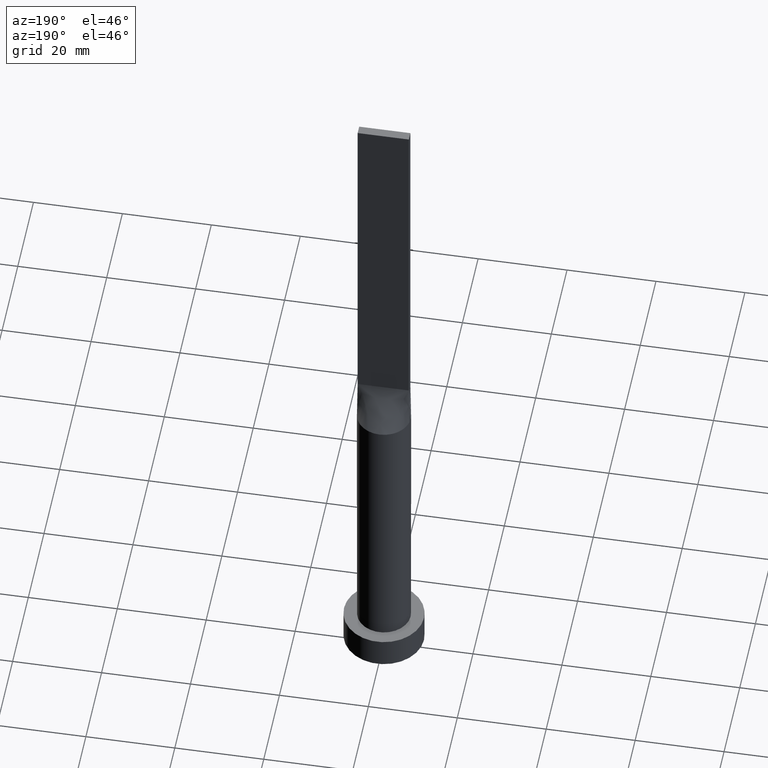
[diagram: clean part render]
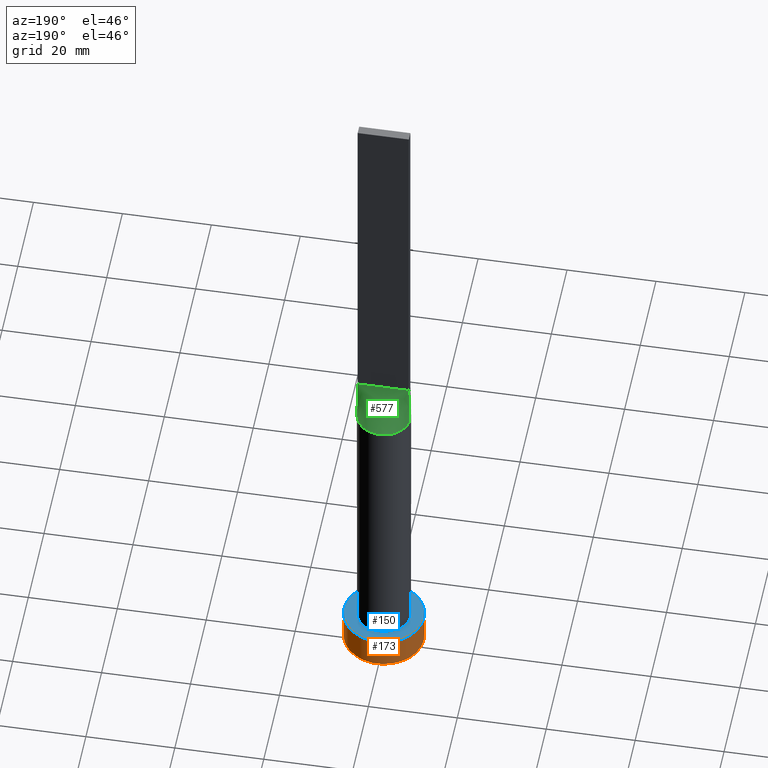
[diagram: same view with three faces highlighted in distinct colors, each labeled with its STEP entity id]
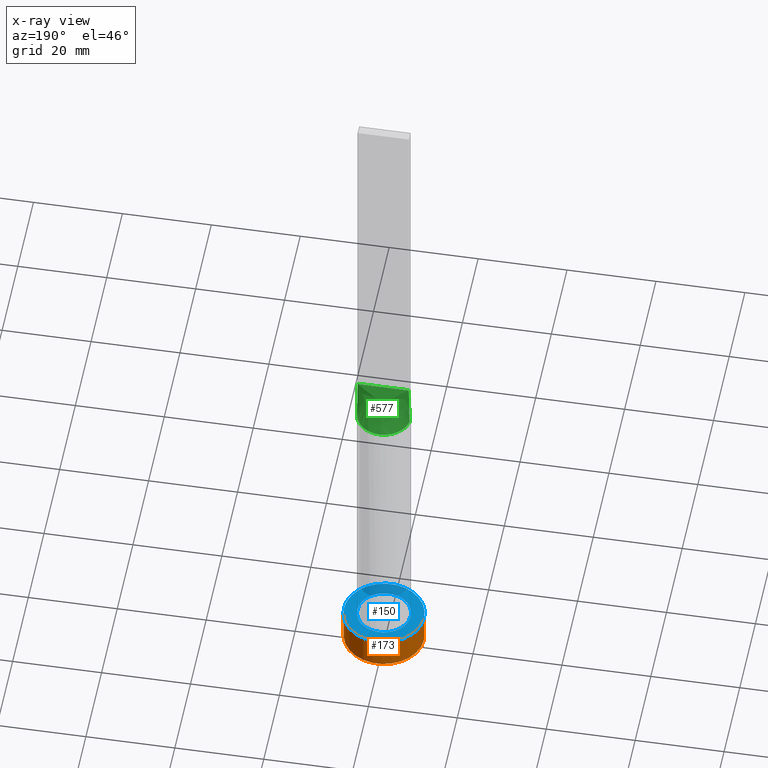
[diagram: x-ray of the same camera — body ghosted, the three highlighted faces saturated]
A machine part, auxiliary view with three faces highlighted in distinct colors.
The next image is the same camera in x-ray (body ghosted, the three faces saturated) — at least one of them is partly hidden behind the body in this view.
Their STEP definitions:

[orange] entity #173 — the highlighted cylindrical surface (partial cylindrical patch) has radius 9 mm, axis along (-0, -0, -1).
#24 = CARTESIAN_POINT ( 'NONE',  ( -9.000000000000000000, 0.000000000000000000, 0.000000000000000000 ) ) ;
#25 = VECTOR ( 'NONE', #178, 1000.000000000000000 ) ;
#48 = LINE ( 'NONE', #52, #281 ) ;
#52 = CARTESIAN_POINT ( 'NONE',  ( -9.000000000000000000, 0.000000000000000000, 7.000000000000000000 ) ) ;
#59 = CARTESIAN_POINT ( 'NONE',  ( 0.000000000000000000, 0.000000000000000000, 0.000000000000000000 ) ) ;
#74 = VERTEX_POINT ( 'NONE', #349 ) ;
#120 = ORIENTED_EDGE ( 'NONE', *, *, #128, .F. ) ;
#128 = EDGE_CURVE ( 'NONE', #303, #74, #235, .T. ) ;
#136 = EDGE_CURVE ( 'NONE', #340, #491, #151, .T. ) ;
#151 = CIRCLE ( 'NONE', #313, 9.000000000000000000 ) ;
#154 = FACE_OUTER_BOUND ( 'NONE', #598, .T. ) ;
#173 = ADVANCED_FACE ( 'NONE', ( #154 ), #509, .T. ) ;
#178 = DIRECTION ( 'NONE',  ( -0.000000000000000000, -0.000000000000000000, -1.000000000000000000 ) ) ;
#235 = CIRCLE ( 'NONE', #375, 9.000000000000000000 ) ;
#256 = DIRECTION ( 'NONE',  ( 0.000000000000000000, 0.000000000000000000, 1.000000000000000000 ) ) ;
#258 = ORIENTED_EDGE ( 'NONE', *, *, #283, .F. ) ;
#265 = ORIENTED_EDGE ( 'NONE', *, *, #136, .T. ) ;
#281 = VECTOR ( 'NONE', #448, 1000.000000000000000 ) ;
#283 = EDGE_CURVE ( 'NONE', #74, #491, #48, .T. ) ;
#296 = CARTESIAN_POINT ( 'NONE',  ( 0.000000000000000000, 0.000000000000000000, 7.000000000000000000 ) ) ;
#303 = VERTEX_POINT ( 'NONE', #402 ) ;
#313 = AXIS2_PLACEMENT_3D ( 'NONE', #59, #597, #459 ) ;
#315 = ORIENTED_EDGE ( 'NONE', *, *, #532, .T. ) ;
#340 = VERTEX_POINT ( 'NONE', #451 ) ;
#349 = CARTESIAN_POINT ( 'NONE',  ( -9.000000000000000000, 0.000000000000000000, 7.000000000000000000 ) ) ;
#375 = AXIS2_PLACEMENT_3D ( 'NONE', #296, #256, #452 ) ;
#402 = CARTESIAN_POINT ( 'NONE',  ( 9.000000000000000000, 1.102182119232617714E-15, 7.000000000000000000 ) ) ;
#405 = AXIS2_PLACEMENT_3D ( 'NONE', #558, #618, #513 ) ;
#420 = LINE ( 'NONE', #611, #25 ) ;
#448 = DIRECTION ( 'NONE',  ( -0.000000000000000000, -0.000000000000000000, -1.000000000000000000 ) ) ;
#451 = CARTESIAN_POINT ( 'NONE',  ( 9.000000000000000000, 1.102182119232617714E-15, 0.000000000000000000 ) ) ;
#452 = DIRECTION ( 'NONE',  ( 1.000000000000000000, 0.000000000000000000, 0.000000000000000000 ) ) ;
#459 = DIRECTION ( 'NONE',  ( 1.000000000000000000, 0.000000000000000000, 0.000000000000000000 ) ) ;
#491 = VERTEX_POINT ( 'NONE', #24 ) ;
#509 = CYLINDRICAL_SURFACE ( 'NONE', #405, 9.000000000000000000 ) ;
#513 = DIRECTION ( 'NONE',  ( -1.000000000000000000, 0.000000000000000000, 0.000000000000000000 ) ) ;
#532 = EDGE_CURVE ( 'NONE', #303, #340, #420, .T. ) ;
#558 = CARTESIAN_POINT ( 'NONE',  ( 0.000000000000000000, 0.000000000000000000, 7.000000000000000000 ) ) ;
#597 = DIRECTION ( 'NONE',  ( 0.000000000000000000, 0.000000000000000000, 1.000000000000000000 ) ) ;
#598 = EDGE_LOOP ( 'NONE', ( #120, #315, #265, #258 ) ) ;
#611 = CARTESIAN_POINT ( 'NONE',  ( 9.000000000000000000, 1.102182119232617714E-15, 7.000000000000000000 ) ) ;
#618 = DIRECTION ( 'NONE',  ( -0.000000000000000000, -0.000000000000000000, -1.000000000000000000 ) ) ;

[blue] entity #150 — the highlighted planar face has unit normal (0, 0, 1).
#14 = CARTESIAN_POINT ( 'NONE',  ( 0.000000000000000000, 0.000000000000000000, 7.000000000000000000 ) ) ;
#15 = CIRCLE ( 'NONE', #161, 6.000000000000000888 ) ;
#22 = DIRECTION ( 'NONE',  ( 0.000000000000000000, 0.000000000000000000, 1.000000000000000000 ) ) ;
#46 = EDGE_CURVE ( 'NONE', #261, #253, #15, .T. ) ;
#55 = EDGE_CURVE ( 'NONE', #253, #261, #134, .T. ) ;
#62 = EDGE_LOOP ( 'NONE', ( #411, #560 ) ) ;
#65 = FACE_BOUND ( 'NONE', #62, .T. ) ;
#74 = VERTEX_POINT ( 'NONE', #349 ) ;
#76 = CARTESIAN_POINT ( 'NONE',  ( 0.000000000000000000, 0.000000000000000000, 7.000000000000000000 ) ) ;
#85 = EDGE_CURVE ( 'NONE', #74, #303, #264, .T. ) ;
#108 = DIRECTION ( 'NONE',  ( 1.000000000000000000, 0.000000000000000000, 0.000000000000000000 ) ) ;
#113 = DIRECTION ( 'NONE',  ( 0.000000000000000000, 0.000000000000000000, 1.000000000000000000 ) ) ;
#128 = EDGE_CURVE ( 'NONE', #303, #74, #235, .T. ) ;
#134 = CIRCLE ( 'NONE', #487, 6.000000000000000888 ) ;
#137 = CARTESIAN_POINT ( 'NONE',  ( -6.000000000000000888, 0.000000000000000000, 7.000000000000000000 ) ) ;
#150 = ADVANCED_FACE ( 'NONE', ( #65, #414 ), #302, .T. ) ;
#153 = CARTESIAN_POINT ( 'NONE',  ( 6.000000000000000888, 7.347880794884120722E-16, 7.000000000000000000 ) ) ;
#161 = AXIS2_PLACEMENT_3D ( 'NONE', #14, #22, #547 ) ;
#167 = DIRECTION ( 'NONE',  ( 0.000000000000000000, 0.000000000000000000, 1.000000000000000000 ) ) ;
#200 = ORIENTED_EDGE ( 'NONE', *, *, #128, .T. ) ;
#201 = DIRECTION ( 'NONE',  ( 1.000000000000000000, 0.000000000000000000, 0.000000000000000000 ) ) ;
#205 = DIRECTION ( 'NONE',  ( 1.000000000000000000, 0.000000000000000000, -0.000000000000000000 ) ) ;
#216 = CARTESIAN_POINT ( 'NONE',  ( 0.000000000000000000, 0.000000000000000000, 7.000000000000000000 ) ) ;
#235 = CIRCLE ( 'NONE', #375, 9.000000000000000000 ) ;
#253 = VERTEX_POINT ( 'NONE', #137 ) ;
#256 = DIRECTION ( 'NONE',  ( 0.000000000000000000, 0.000000000000000000, 1.000000000000000000 ) ) ;
#261 = VERTEX_POINT ( 'NONE', #153 ) ;
#264 = CIRCLE ( 'NONE', #537, 9.000000000000000000 ) ;
#296 = CARTESIAN_POINT ( 'NONE',  ( 0.000000000000000000, 0.000000000000000000, 7.000000000000000000 ) ) ;
#302 = PLANE ( 'NONE',  #499 ) ;
#303 = VERTEX_POINT ( 'NONE', #402 ) ;
#349 = CARTESIAN_POINT ( 'NONE',  ( -9.000000000000000000, 0.000000000000000000, 7.000000000000000000 ) ) ;
#375 = AXIS2_PLACEMENT_3D ( 'NONE', #296, #256, #452 ) ;
#402 = CARTESIAN_POINT ( 'NONE',  ( 9.000000000000000000, 1.102182119232617714E-15, 7.000000000000000000 ) ) ;
#411 = ORIENTED_EDGE ( 'NONE', *, *, #55, .F. ) ;
#414 = FACE_OUTER_BOUND ( 'NONE', #450, .T. ) ;
#450 = EDGE_LOOP ( 'NONE', ( #610, #200 ) ) ;
#452 = DIRECTION ( 'NONE',  ( 1.000000000000000000, 0.000000000000000000, 0.000000000000000000 ) ) ;
#487 = AXIS2_PLACEMENT_3D ( 'NONE', #76, #542, #201 ) ;
#499 = AXIS2_PLACEMENT_3D ( 'NONE', #551, #167, #205 ) ;
#537 = AXIS2_PLACEMENT_3D ( 'NONE', #216, #113, #108 ) ;
#542 = DIRECTION ( 'NONE',  ( 0.000000000000000000, 0.000000000000000000, 1.000000000000000000 ) ) ;
#547 = DIRECTION ( 'NONE',  ( 1.000000000000000000, 0.000000000000000000, 0.000000000000000000 ) ) ;
#551 = CARTESIAN_POINT ( 'NONE',  ( 0.000000000000000000, 0.000000000000000000, 7.000000000000000000 ) ) ;
#560 = ORIENTED_EDGE ( 'NONE', *, *, #46, .F. ) ;
#610 = ORIENTED_EDGE ( 'NONE', *, *, #85, .T. ) ;

[green] entity #577 — the highlighted face is a freeform B-spline surface patch.
#1 = CARTESIAN_POINT ( 'NONE',  ( -3.129188161608685181, 5.133661927581553819, 70.00000000000001421 ) ) ;
#4 = CARTESIAN_POINT ( 'NONE',  ( -5.750000000000000000, 1.000000000000000000, 80.00000000000000000 ) ) ;
#19 = CARTESIAN_POINT ( 'NONE',  ( -5.750000000000000000, 1.000000000000000000, 80.00000000000000000 ) ) ;
#23 = ORIENTED_EDGE ( 'NONE', *, *, #583, .F. ) ;
#29 = CARTESIAN_POINT ( 'NONE',  ( 5.750000000000000000, 1.000000000000000000, 80.00000000000000000 ) ) ;
#32 = CARTESIAN_POINT ( 'NONE',  ( -5.830635264459023581, 1.014023524253742758, 75.00000000000001421 ) ) ;
#35 = CARTESIAN_POINT ( 'NONE',  ( -5.155904004142094266, 3.127085030567958501, 70.00000000000000000 ) ) ;
#38 = VERTEX_POINT ( 'NONE', #19 ) ;
#39 = CARTESIAN_POINT ( 'NONE',  ( 0.4205485882577719159, 6.000000000000000000, 70.00000000000000000 ) ) ;
#42 = LINE ( 'NONE', #143, #64 ) ;
#44 = CARTESIAN_POINT ( 'NONE',  ( -2.047812955694715775, 5.654083712646525761, 70.00000000000001421 ) ) ;
#47 = CARTESIAN_POINT ( 'NONE',  ( 1.197916666666664076, 1.000000000000000000, 79.99999999999998579 ) ) ;
#49 = CARTESIAN_POINT ( 'NONE',  ( -5.270833333333333925, 1.000000000000000000, 80.00000000000000000 ) ) ;
#51 = CARTESIAN_POINT ( 'NONE',  ( 3.129188161608685181, 5.133661927581551154, 69.99999999999998579 ) ) ;
#64 = VECTOR ( 'NONE', #429, 1000.000000000000114 ) ;
#68 = CARTESIAN_POINT ( 'NONE',  ( 4.788055724916948641, 3.685825800347680925, 70.00000000000000000 ) ) ;
#70 = VERTEX_POINT ( 'NONE', #501 ) ;
#71 = CARTESIAN_POINT ( 'NONE',  ( -5.911281259919041631, 1.028048927730119244, 70.00000000000000000 ) ) ;
#75 = CARTESIAN_POINT ( 'NONE',  ( -5.826866859193279069, 1.513368149424918263, 70.00000000000001421 ) ) ;
#77 = ORIENTED_EDGE ( 'NONE', *, *, #557, .F. ) ;
#78 = DIRECTION ( 'NONE',  ( 0.01612489271847474676, -0.002804329168430286148, 0.9998660528154422744 ) ) ;
#86 = CARTESIAN_POINT ( 'NONE',  ( -2.047812955694715775, 5.654083712646525761, 70.00000000000001421 ) ) ;
#89 = CARTESIAN_POINT ( 'NONE',  ( -4.791666666666667851, 1.000000000000000000, 80.00000000000000000 ) ) ;
#91 = CARTESIAN_POINT ( 'NONE',  ( 5.750000000000000000, 1.000000000000000000, 80.00000000000000000 ) ) ;
#94 = CARTESIAN_POINT ( 'NONE',  ( -2.635416666666670071, 1.000000000000000000, 80.00000000000001421 ) ) ;
#96 = VECTOR ( 'NONE', #78, 1000.000000000000114 ) ;
#97 = CARTESIAN_POINT ( 'NONE',  ( 4.788055724916948641, 3.685825800347680925, 70.00000000000000000 ) ) ;
#99 = CARTESIAN_POINT ( 'NONE',  ( 0.9583333333333304838, 1.000000000000000000, 79.99999999999998579 ) ) ;
#106 = ORIENTED_EDGE ( 'NONE', *, *, #394, .T. ) ;
#111 = CARTESIAN_POINT ( 'NONE',  ( 5.155904004142093378, 3.127085030567957169, 70.00000000000001421 ) ) ;
#115 = CARTESIAN_POINT ( 'NONE',  ( -1.654707822076785906, 5.782296865845955480, 70.00000000000001421 ) ) ;
#126 = CARTESIAN_POINT ( 'NONE',  ( 2.047812955694715331, 5.654083712646525761, 70.00000000000000000 ) ) ;
#135 = CARTESIAN_POINT ( 'NONE',  ( 1.677083333333330817, 1.000000000000000000, 79.99999999999998579 ) ) ;
#138 = CARTESIAN_POINT ( 'NONE',  ( -0.2395833333333365622, 1.000000000000000000, 79.99999999999998579 ) ) ;
#140 = CARTESIAN_POINT ( 'NONE',  ( -3.833333333333336146, 1.000000000000000000, 80.00000000000001421 ) ) ;
#142 = VECTOR ( 'NONE', #382, 1000.000000000000000 ) ;
#143 = CARTESIAN_POINT ( 'NONE',  ( 5.830635264459024469, 1.014023524253741648, 75.00000000000001421 ) ) ;
#157 = CARTESIAN_POINT ( 'NONE',  ( 5.674157483178163375, 2.041064365575945061, 70.00000000000000000 ) ) ;
#177 = EDGE_LOOP ( 'NONE', ( #106, #555, #23, #77 ) ) ;
#180 = CARTESIAN_POINT ( 'NONE',  ( 0.4791666666666635765, 1.000000000000000000, 79.99999999999998579 ) ) ;
#183 = CARTESIAN_POINT ( 'NONE',  ( 2.635416666666664298, 1.000000000000000000, 79.99999999999998579 ) ) ;
#185 = CARTESIAN_POINT ( 'NONE',  ( 5.826866859193277293, 1.513368149424917153, 70.00000000000001421 ) ) ;
#187 = CARTESIAN_POINT ( 'NONE',  ( -1.916666666666669849, 1.000000000000000000, 80.00000000000000000 ) ) ;
#189 = B_SPLINE_SURFACE_WITH_KNOTS ( 'NONE', 3, 1, ( 
 ( #426, #91 ),
 ( #185, #329 ),
 ( #238, #567 ),
 ( #474, #433 ),
 ( #97, #529 ),
 ( #533, #183 ),
 ( #376, #236 ),
 ( #51, #574 ),
 ( #617, #135 ),
 ( #579, #47 ),
 ( #576, #99 ),
 ( #372, #180 ),
 ( #571, #327 ),
 ( #229, #138 ),
 ( #525, #480 ),
 ( #278, #521 ),
 ( #44, #471 ),
 ( #527, #280 ),
 ( #1, #187 ),
 ( #476, #232 ),
 ( #241, #94 ),
 ( #286, #379 ),
 ( #613, #140 ),
 ( #332, #89 ),
 ( #275, #49 ),
 ( #284, #190 ) ),
 .UNSPECIFIED., .F., .F., .F.,
 ( 4, 2, 2, 2, 2, 2, 2, 2, 2, 2, 2, 2, 4 ),
 ( 2, 2 ),
 ( 0.000000000000000000, 0.1250000000000000000, 0.2500000000000000000, 0.3125000000000000000, 0.3750000000000000000, 0.4375000000000000000, 0.5000000000000000000, 0.5625000000000000000, 0.6250000000000000000, 0.6875000000000000000, 0.7500000000000000000, 0.8750000000000000000, 1.000000000000000000 ),
 ( 0.000000000000000000, 1.000000000000000000 ),
 .UNSPECIFIED. ) ;
#190 = CARTESIAN_POINT ( 'NONE',  ( -5.750000000000000000, 1.000000000000000000, 80.00000000000000000 ) ) ;
#207 = CARTESIAN_POINT ( 'NONE',  ( 3.755743307515265084, 4.694751915224760097, 69.99999999999998579 ) ) ;
#229 = CARTESIAN_POINT ( 'NONE',  ( -0.4205485882577720824, 6.000000000000000888, 69.99999999999998579 ) ) ;
#232 = CARTESIAN_POINT ( 'NONE',  ( -2.395833333333336590, 1.000000000000000000, 80.00000000000001421 ) ) ;
#236 = CARTESIAN_POINT ( 'NONE',  ( 2.395833333333330817, 1.000000000000000000, 79.99999999999998579 ) ) ;
#238 = CARTESIAN_POINT ( 'NONE',  ( 5.674157483178163375, 2.041064365575945061, 70.00000000000000000 ) ) ;
#241 = CARTESIAN_POINT ( 'NONE',  ( -4.038230363771780240, 4.452009983475584853, 69.99999999999998579 ) ) ;
#254 = CARTESIAN_POINT ( 'NONE',  ( 4.038230363771782905, 4.452009983475585742, 70.00000000000000000 ) ) ;
#269 = CARTESIAN_POINT ( 'NONE',  ( 0.8409966403356972098, 5.955311887059998810, 70.00000000000001421 ) ) ;
#275 = CARTESIAN_POINT ( 'NONE',  ( -5.826866859193279069, 1.513368149424918263, 70.00000000000001421 ) ) ;
#278 = CARTESIAN_POINT ( 'NONE',  ( -1.654707822076785906, 5.782296865845955480, 70.00000000000001421 ) ) ;
#280 = CARTESIAN_POINT ( 'NONE',  ( -1.677083333333336368, 1.000000000000000000, 79.99999999999998579 ) ) ;
#284 = CARTESIAN_POINT ( 'NONE',  ( -5.911270528918048051, 1.028047048507485517, 70.00000000000000000 ) ) ;
#286 = CARTESIAN_POINT ( 'NONE',  ( -4.788055724916949529, 3.685825800347683590, 70.00000000000000000 ) ) ;
#304 = CARTESIAN_POINT ( 'NONE',  ( -4.038230363771780240, 4.452009983475584853, 69.99999999999998579 ) ) ;
#308 = CARTESIAN_POINT ( 'NONE',  ( -3.755743307515264195, 4.694751915224762762, 69.99999999999998579 ) ) ;
#320 = CARTESIAN_POINT ( 'NONE',  ( 1.654707822076785684, 5.782296865845954592, 70.00000000000002842 ) ) ;
#327 = CARTESIAN_POINT ( 'NONE',  ( 0.2395833333333300952, 1.000000000000000000, 79.99999999999998579 ) ) ;
#329 = CARTESIAN_POINT ( 'NONE',  ( 5.270833333333333037, 1.000000000000000000, 79.99999999999998579 ) ) ;
#331 = CARTESIAN_POINT ( 'NONE',  ( 3.129188161608685181, 5.133661927581551154, 69.99999999999998579 ) ) ;
#332 = CARTESIAN_POINT ( 'NONE',  ( -5.674157483178163375, 2.041064365575947726, 70.00000000000000000 ) ) ;
#336 = FACE_OUTER_BOUND ( 'NONE', #177, .T. ) ;
#372 = CARTESIAN_POINT ( 'NONE',  ( 0.8409966403356972098, 5.955311887059998810, 70.00000000000001421 ) ) ;
#376 = CARTESIAN_POINT ( 'NONE',  ( 3.755743307515265084, 4.694751915224760097, 69.99999999999998579 ) ) ;
#379 = CARTESIAN_POINT ( 'NONE',  ( -3.354166666666669627, 1.000000000000000000, 80.00000000000001421 ) ) ;
#382 = DIRECTION ( 'NONE',  ( -1.000000000000000000, -0.000000000000000000, -0.000000000000000000 ) ) ;
#394 = EDGE_CURVE ( 'NONE', #594, #70, #399, .T. ) ;
#399 = B_SPLINE_CURVE_WITH_KNOTS ( 'NONE', 3,
 ( #591, #478, #157, #111, #68, #254, #207, #331, #528, #126, #320, #269, #39, #519, #516, #115, #86, #561, #553, #308, #304, #508, #35, #603, #75, #71 ),
 .UNSPECIFIED., .F., .F.,
 ( 4, 2, 2, 2, 2, 2, 2, 2, 2, 2, 2, 2, 4 ),
 ( 0.000000000000000000, 0.1250000000000000000, 0.2500000000000000000, 0.3125000000000000000, 0.3750000000000000000, 0.4375000000000000000, 0.5000000000000000000, 0.5625000000000000000, 0.6250000000000000000, 0.6875000000000000000, 0.7500000000000000000, 0.8750000000000000000, 1.000000000000000000 ),
 .UNSPECIFIED. ) ;
#426 = CARTESIAN_POINT ( 'NONE',  ( 5.911270528918048051, 1.028047048507485961, 70.00000000000000000 ) ) ;
#429 = DIRECTION ( 'NONE',  ( -0.01612489271847483002, -0.002804329168430069741, 0.9998660528154422744 ) ) ;
#433 = CARTESIAN_POINT ( 'NONE',  ( 3.833333333333331705, 1.000000000000000000, 79.99999999999998579 ) ) ;
#435 = LINE ( 'NONE', #4, #142 ) ;
#455 = EDGE_CURVE ( 'NONE', #70, #38, #504, .T. ) ;
#471 = CARTESIAN_POINT ( 'NONE',  ( -1.197916666666669849, 1.000000000000000000, 79.99999999999998579 ) ) ;
#474 = CARTESIAN_POINT ( 'NONE',  ( 5.155904004142093378, 3.127085030567957169, 70.00000000000001421 ) ) ;
#476 = CARTESIAN_POINT ( 'NONE',  ( -3.755743307515264195, 4.694751915224762762, 69.99999999999998579 ) ) ;
#478 = CARTESIAN_POINT ( 'NONE',  ( 5.826866859193277293, 1.513368149424917153, 70.00000000000001421 ) ) ;
#480 = CARTESIAN_POINT ( 'NONE',  ( -0.4791666666666699048, 1.000000000000000000, 79.99999999999998579 ) ) ;
#501 = CARTESIAN_POINT ( 'NONE',  ( -5.911281259919041631, 1.028048927730119244, 70.00000000000000000 ) ) ;
#504 = LINE ( 'NONE', #32, #96 ) ;
#507 = VERTEX_POINT ( 'NONE', #29 ) ;
#508 = CARTESIAN_POINT ( 'NONE',  ( -4.788055724916949529, 3.685825800347683590, 70.00000000000000000 ) ) ;
#516 = CARTESIAN_POINT ( 'NONE',  ( -0.8409966403356965436, 5.955311887059998810, 70.00000000000002842 ) ) ;
#519 = CARTESIAN_POINT ( 'NONE',  ( -0.4205485882577720824, 6.000000000000000888, 69.99999999999998579 ) ) ;
#521 = CARTESIAN_POINT ( 'NONE',  ( -0.9583333333333364790, 1.000000000000000000, 79.99999999999998579 ) ) ;
#525 = CARTESIAN_POINT ( 'NONE',  ( -0.8409966403356965436, 5.955311887059998810, 70.00000000000002842 ) ) ;
#527 = CARTESIAN_POINT ( 'NONE',  ( -2.785082292717042218, 5.329682650394847343, 70.00000000000000000 ) ) ;
#528 = CARTESIAN_POINT ( 'NONE',  ( 2.785082292717041330, 5.329682650394847343, 70.00000000000001421 ) ) ;
#529 = CARTESIAN_POINT ( 'NONE',  ( 3.354166666666665186, 1.000000000000000000, 79.99999999999998579 ) ) ;
#533 = CARTESIAN_POINT ( 'NONE',  ( 4.038230363771782905, 4.452009983475585742, 70.00000000000000000 ) ) ;
#535 = CARTESIAN_POINT ( 'NONE',  ( 5.911270528918048939, 1.028047048507483519, 70.00000000000000000 ) ) ;
#553 = CARTESIAN_POINT ( 'NONE',  ( -3.129188161608685181, 5.133661927581553819, 70.00000000000001421 ) ) ;
#555 = ORIENTED_EDGE ( 'NONE', *, *, #455, .T. ) ;
#557 = EDGE_CURVE ( 'NONE', #594, #507, #42, .T. ) ;
#561 = CARTESIAN_POINT ( 'NONE',  ( -2.785082292717042218, 5.329682650394847343, 70.00000000000000000 ) ) ;
#567 = CARTESIAN_POINT ( 'NONE',  ( 4.791666666666666075, 1.000000000000000000, 79.99999999999998579 ) ) ;
#571 = CARTESIAN_POINT ( 'NONE',  ( 0.4205485882577719159, 6.000000000000000000, 70.00000000000000000 ) ) ;
#574 = CARTESIAN_POINT ( 'NONE',  ( 1.916666666666663854, 1.000000000000000000, 79.99999999999998579 ) ) ;
#576 = CARTESIAN_POINT ( 'NONE',  ( 1.654707822076785684, 5.782296865845954592, 70.00000000000002842 ) ) ;
#577 = ADVANCED_FACE ( 'NONE', ( #336 ), #189, .T. ) ;
#579 = CARTESIAN_POINT ( 'NONE',  ( 2.047812955694715331, 5.654083712646525761, 70.00000000000000000 ) ) ;
#583 = EDGE_CURVE ( 'NONE', #507, #38, #435, .T. ) ;
#591 = CARTESIAN_POINT ( 'NONE',  ( 5.911270528918048939, 1.028047048507483519, 70.00000000000000000 ) ) ;
#594 = VERTEX_POINT ( 'NONE', #535 ) ;
#603 = CARTESIAN_POINT ( 'NONE',  ( -5.674157483178163375, 2.041064365575947726, 70.00000000000000000 ) ) ;
#613 = CARTESIAN_POINT ( 'NONE',  ( -5.155904004142094266, 3.127085030567958501, 70.00000000000000000 ) ) ;
#617 = CARTESIAN_POINT ( 'NONE',  ( 2.785082292717041330, 5.329682650394847343, 70.00000000000001421 ) ) ;